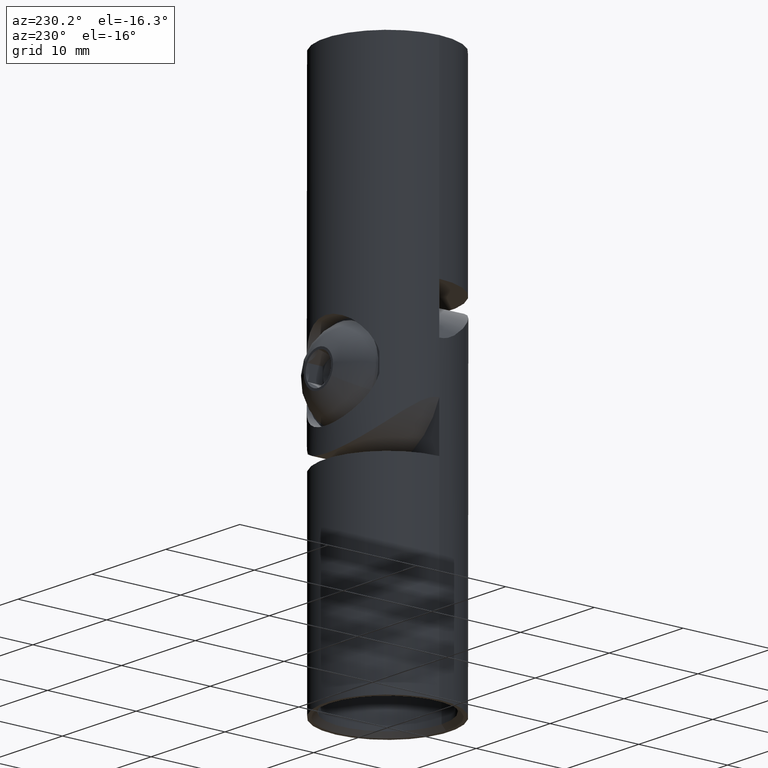
[diagram: clean part render]
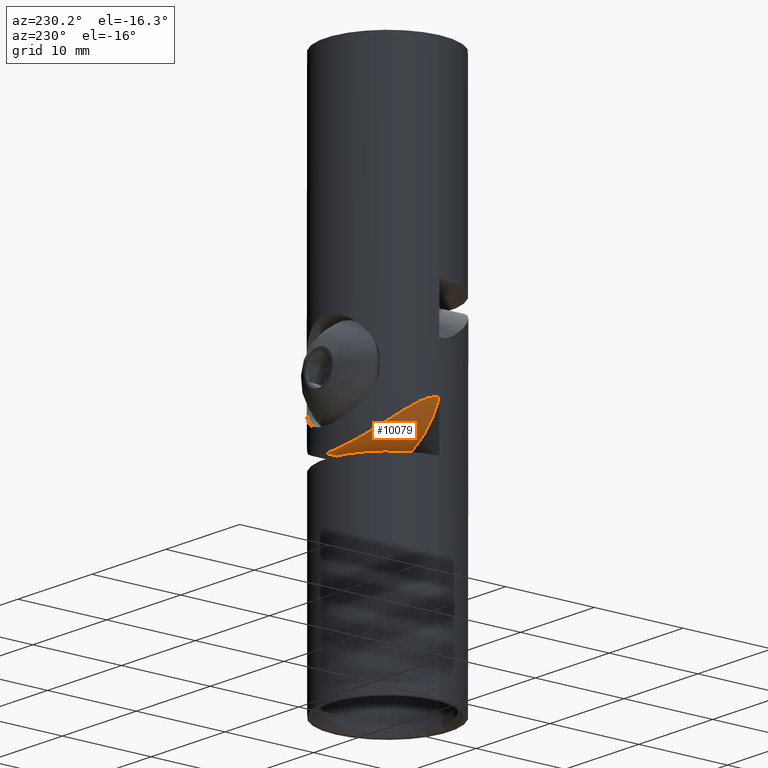
[diagram: same view with one face highlighted and labeled with its STEP entity id]
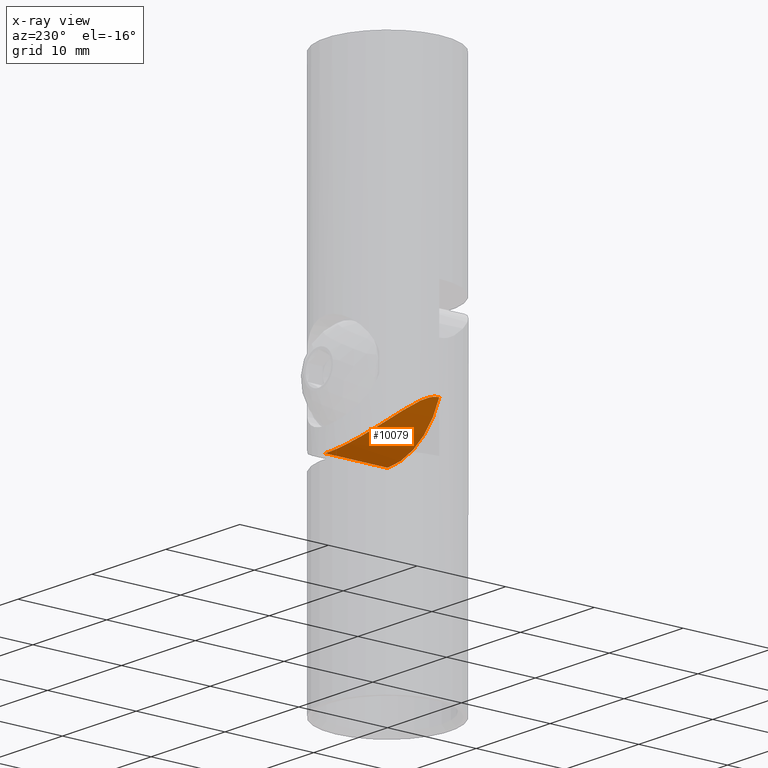
[diagram: x-ray of the same camera — body ghosted, the highlighted face saturated]
A machine part, auxiliary view. The second image highlights one B-rep face of the part: STEP entity #10079.
The next image is the same camera in x-ray: the body ghosted, the highlighted face saturated — about 0% of this face is hidden behind the body in this view.
In plain terms, the highlighted cylindrical surface (partial cylindrical patch) has radius 7.5 mm, axis along (-0, -1, -0).
Its self-contained STEP definition (entity closure, byte-faithful):
#814 = CARTESIAN_POINT ( 'NONE',  ( -1.014079867848785677, 6.930787867623797283, -15.43543686387268643 ) ) ;
#1615 = CARTESIAN_POINT ( 'NONE',  ( 2.450138959679273020E-16, 7.000000000000015987, -15.50000000000001599 ) ) ;
#1799 = CARTESIAN_POINT ( 'NONE',  ( -4.453659042678379976, 5.419030401526724106, -14.05006662118064042 ) ) ;
#1884 = CARTESIAN_POINT ( 'NONE',  ( -3.907927142053708280, 5.811914296742112462, -14.40509185724050845 ) ) ;
#2027 = ORIENTED_EDGE ( 'NONE', *, *, #13670, .T. ) ;
#2987 = CARTESIAN_POINT ( 'NONE',  ( -6.607538234081038020, 2.321347933528485452, -11.55127047643201443 ) ) ;
#3043 = CARTESIAN_POINT ( 'NONE',  ( -3.715343988396557773, 5.937165706032342172, -14.51902597105185500 ) ) ;
#3826 = VECTOR ( 'NONE', #9349, 1000.000000000000000 ) ;
#4761 = CYLINDRICAL_SURFACE ( 'NONE', #11942, 7.500000000000000000 ) ;
#5105 = CARTESIAN_POINT ( 'NONE',  ( -5.632424313929414339, 4.177368838400298934, -12.96587217374101542 ) ) ;
#5195 = CARTESIAN_POINT ( 'NONE',  ( -1.988797161500903909, 6.729888983140163816, -15.24843961918347723 ) ) ;
#5729 = LINE ( 'NONE', #8324, #3826 ) ;
#5815 = CARTESIAN_POINT ( 'NONE',  ( 8.673617379884035472E-16, 0.000000000000000000, -15.50000000000000000 ) ) ;
#6188 = CARTESIAN_POINT ( 'NONE',  ( -6.532492044656816432, 2.524209097300211813, -11.68818189566784582 ) ) ;
#6278 = CARTESIAN_POINT ( 'NONE',  ( -6.740042051753206032, 1.902643130999128518, -11.29285843185200910 ) ) ;
#6319 = CARTESIAN_POINT ( 'NONE',  ( -4.779645340135918907, 5.132038751092206752, -13.79352977384220935 ) ) ;
#6733 = VERTEX_POINT ( 'NONE', #6751 ) ;
#6751 = CARTESIAN_POINT ( 'NONE',  ( -6.999999999999999112, -0.000000000000000000, -10.69258240356725054 ) ) ;
#7284 = CARTESIAN_POINT ( 'NONE',  ( -6.999999999999998224, 0.2574305402265175124, -10.69258240356724698 ) ) ;
#7330 = CARTESIAN_POINT ( 'NONE',  ( -0.5104234960644172814, 6.985960656849049322, -15.48689169079388428 ) ) ;
#8159 = FACE_OUTER_BOUND ( 'NONE', #14054, .T. ) ;
#8324 = CARTESIAN_POINT ( 'NONE',  ( 8.673617379884035472E-16, 7.000000000000000000, -15.50000000000000000 ) ) ;
#8391 = CARTESIAN_POINT ( 'NONE',  ( -5.368749732199646019, 4.512134487490519597, -13.25228741891429429 ) ) ;
#8435 = CARTESIAN_POINT ( 'NONE',  ( -2.458891047116524842, 6.571046651608046574, -15.10090493762181119 ) ) ;
#8486 = CARTESIAN_POINT ( 'NONE',  ( -6.999999999999999112, -0.000000000000000000, -10.69258240356725054 ) ) ;
#9349 = DIRECTION ( 'NONE',  ( -0.000000000000000000, -1.000000000000000000, -0.000000000000000000 ) ) ;
#9427 = CARTESIAN_POINT ( 'NONE',  ( 8.673617379884035472E-16, 0.000000000000000000, -8.000000000000000000 ) ) ;
#9459 = CARTESIAN_POINT ( 'NONE',  ( -6.893911361947512972, 1.235798923973859154, -10.95599155336305763 ) ) ;
#9461 = CARTESIAN_POINT ( 'NONE',  ( 8.673617379884035472E-16, 7.000000000000000000, -8.000000000000000000 ) ) ;
#9509 = ORIENTED_EDGE ( 'NONE', *, *, #11146, .F. ) ;
#9555 = CARTESIAN_POINT ( 'NONE',  ( -6.284989493064337296, 3.111148115031149075, -12.10529647019767907 ) ) ;
#9599 = CARTESIAN_POINT ( 'NONE',  ( -6.932747388628011542, 0.9984988950966647847, -10.86217282458833999 ) ) ;
#9952 = B_SPLINE_CURVE_WITH_KNOTS ( 'NONE', 3,
 ( #10550, #13860, #7330, #814, #11739, #5195, #8435, #11639, #12746, #3043, #1884, #1799, #6319, #8391, #5105, #13779, #9555, #6188, #2987, #6278, #13906, #9459, #9599, #10686, #7284, #8486 ),
 .UNSPECIFIED., .F., .F.,
 ( 4, 2, 2, 2, 2, 2, 2, 2, 2, 2, 2, 2, 4 ),
 ( 0.01215800611721186072, 0.01291599823136547684, 0.01367399034551909295, 0.01518997457382632518, 0.01594796668797994130, 0.01670595880213356088, 0.01822194303044078964, 0.01973792725874802187, 0.02125391148705525063, 0.02201190360120886674, 0.02276989571536248286, 0.02352788782951609897, 0.02428587994366971162 ),
 .UNSPECIFIED. ) ;
#10079 = ADVANCED_FACE ( 'NONE', ( #8159 ), #4761, .T. ) ;
#10464 = DIRECTION ( 'NONE',  ( -0.000000000000000000, -1.000000000000000000, -0.000000000000000000 ) ) ;
#10509 = DIRECTION ( 'NONE',  ( 0.000000000000000000, 0.000000000000000000, 1.000000000000000000 ) ) ;
#10550 = CARTESIAN_POINT ( 'NONE',  ( 2.450138959679273020E-16, 7.000000000000015987, -15.50000000000001599 ) ) ;
#10686 = CARTESIAN_POINT ( 'NONE',  ( -6.985580845729351118, 0.5115140719637790712, -10.73069219798198759 ) ) ;
#10777 = VERTEX_POINT ( 'NONE', #5815 ) ;
#11146 = EDGE_CURVE ( 'NONE', #12954, #6733, #9952, .T. ) ;
#11639 = CARTESIAN_POINT ( 'NONE',  ( -3.106612020093074911, 6.277353070874141849, -14.83035217139615014 ) ) ;
#11714 = ORIENTED_EDGE ( 'NONE', *, *, #14028, .T. ) ;
#11739 = CARTESIAN_POINT ( 'NONE',  ( -1.261126782524492951, 6.889937532891408978, -15.39735473017450218 ) ) ;
#11830 = CIRCLE ( 'NONE', #12805, 7.500000000000000000 ) ;
#11942 = AXIS2_PLACEMENT_3D ( 'NONE', #9461, #10464, #12613 ) ;
#12613 = DIRECTION ( 'NONE',  ( 0.000000000000000000, 0.000000000000000000, -1.000000000000000000 ) ) ;
#12746 = CARTESIAN_POINT ( 'NONE',  ( -3.314477365227490591, 6.169923611228554705, -14.73169520691167911 ) ) ;
#12805 = AXIS2_PLACEMENT_3D ( 'NONE', #9427, #13826, #10509 ) ;
#12954 = VERTEX_POINT ( 'NONE', #1615 ) ;
#13670 = EDGE_CURVE ( 'NONE', #12954, #10777, #5729, .T. ) ;
#13779 = CARTESIAN_POINT ( 'NONE',  ( -6.089393219436294302, 3.477629118129822672, -12.39356123402894205 ) ) ;
#13826 = DIRECTION ( 'NONE',  ( -0.000000000000000000, 1.000000000000000000, -0.000000000000000000 ) ) ;
#13860 = CARTESIAN_POINT ( 'NONE',  ( -0.2531569505745367987, 7.000000000000015099, -15.50000000000001421 ) ) ;
#13906 = CARTESIAN_POINT ( 'NONE',  ( -6.797593286450170247, 1.686990918437769382, -11.17121828986121734 ) ) ;
#14028 = EDGE_CURVE ( 'NONE', #10777, #6733, #11830, .T. ) ;
#14054 = EDGE_LOOP ( 'NONE', ( #9509, #2027, #11714 ) ) ;